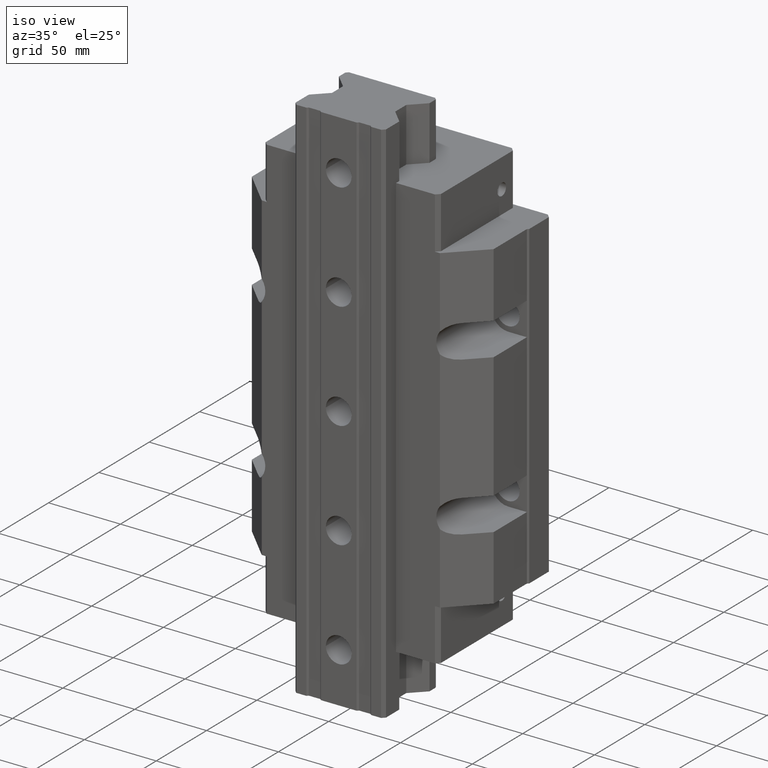
[diagram: clean part render]
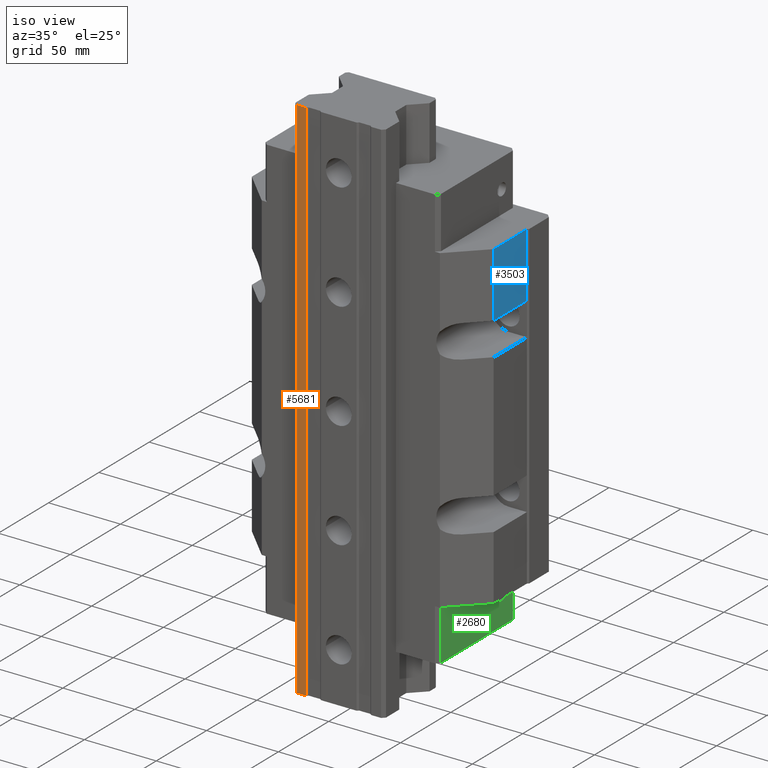
[diagram: same view with three faces highlighted in distinct colors, each labeled with its STEP entity id]
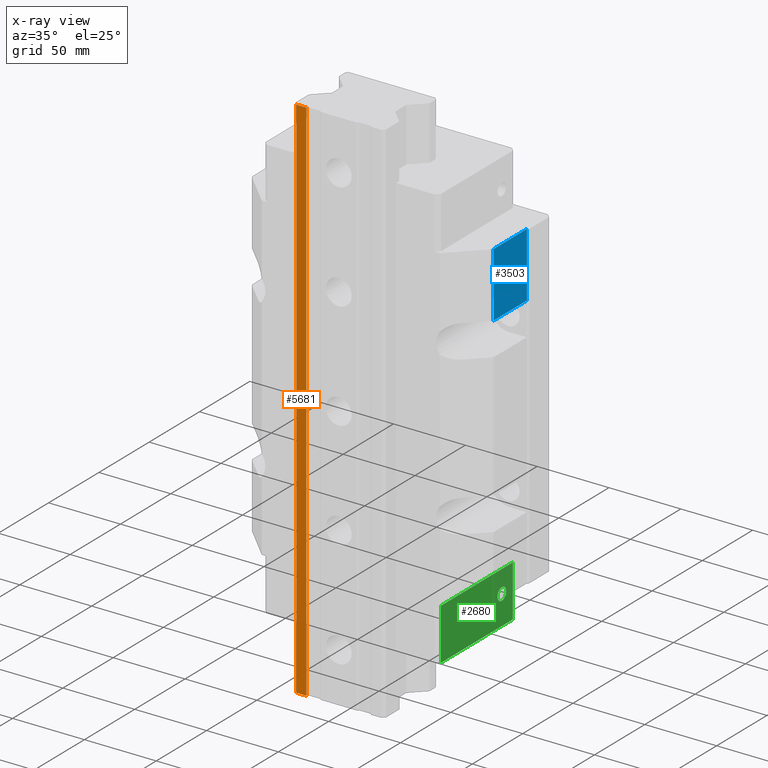
[diagram: x-ray of the same camera — body ghosted, the three highlighted faces saturated]
A machine part, iso view with three faces highlighted in distinct colors.
The next image is the same camera in x-ray (body ghosted, the three faces saturated) — at least one of them is partly hidden behind the body in this view.
Their STEP definitions:

[orange] entity #5681 — the highlighted planar face has unit normal (-0, -1, 0).
#4455=DIRECTION('',(1.E0,-2.050434927233E-7,0.E0));
#4456=VECTOR('',#4455,7.000118888908E0);
#4457=CARTESIAN_POINT('',(-2.950016747676E1,-8.999993794889E1,-1.85E2));
#4458=LINE('',#4457,#4456);
#4609=DIRECTION('',(0.E0,0.E0,1.E0));
#4610=VECTOR('',#4609,3.7E2);
#4611=CARTESIAN_POINT('',(-2.250004858785E1,-8.999993938422E1,-1.85E2));
#4612=LINE('',#4611,#4610);
#4613=DIRECTION('',(1.008202530470E-14,0.E0,1.E0));
#4614=VECTOR('',#4613,3.7E2);
#4615=CARTESIAN_POINT('',(-2.950016747676E1,-8.999993794889E1,-1.85E2));
#4616=LINE('',#4615,#4614);
#4617=DIRECTION('',(1.E0,-2.050434927234E-7,0.E0));
#4618=VECTOR('',#4617,7.000118888904E0);
#4619=CARTESIAN_POINT('',(-2.950016747676E1,-8.999993794889E1,1.85E2));
#4620=LINE('',#4619,#4618);
#5209=CARTESIAN_POINT('',(-2.950016747676E1,-8.999993794889E1,-1.85E2));
#5210=VERTEX_POINT('',#5209);
#5211=CARTESIAN_POINT('',(-2.250004858785E1,-8.999993938422E1,-1.85E2));
#5212=VERTEX_POINT('',#5211);
#5273=CARTESIAN_POINT('',(-2.250004858785E1,-8.999993938422E1,1.85E2));
#5274=VERTEX_POINT('',#5273);
#5275=CARTESIAN_POINT('',(-2.950016747676E1,-8.999993794889E1,1.85E2));
#5276=VERTEX_POINT('',#5275);
#5668=CARTESIAN_POINT('',(-2.950010958327E1,-8.999992554155E1,-1.85E2));
#5669=DIRECTION('',(-2.083333264951E-6,-9.999999999978E-1,0.E0));
#5670=DIRECTION('',(9.999999999978E-1,-2.083333264951E-6,0.E0));
#5671=AXIS2_PLACEMENT_3D('',#5668,#5669,#5670);
#5672=PLANE('',#5671);
#5673=ORIENTED_EDGE('',*,*,#5458,.F.);
#5675=ORIENTED_EDGE('',*,*,#5674,.T.);
#5677=ORIENTED_EDGE('',*,*,#5676,.T.);
#5678=ORIENTED_EDGE('',*,*,#5660,.F.);
#5679=EDGE_LOOP('',(#5673,#5675,#5677,#5678));
#5680=FACE_OUTER_BOUND('',#5679,.F.);
#5681=ADVANCED_FACE('',(#5680),#5672,.T.);
#5458=EDGE_CURVE('',#5210,#5212,#4458,.T.);
#5660=EDGE_CURVE('',#5212,#5274,#4612,.T.);
#5674=EDGE_CURVE('',#5210,#5276,#4616,.T.);
#5676=EDGE_CURVE('',#5276,#5274,#4620,.T.);

[blue] entity #3503 — the highlighted planar face has unit normal (1, -0, 0).
#1024=DIRECTION('',(5.548507052329E-8,2.149577397859E-7,1.E0));
#1025=VECTOR('',#1024,4.5E1);
#1026=CARTESIAN_POINT('',(8.399993432446E1,-2.299999086157E1,6.65E1));
#1027=LINE('',#1026,#1025);
#1127=DIRECTION('',(-1.183637898768E-7,1.E0,0.E0));
#1128=VECTOR('',#1127,3.300000321265E1);
#1129=CARTESIAN_POINT('',(8.399993823047E1,-5.599999407422E1,6.65E1));
#1130=LINE('',#1129,#1128);
#1131=DIRECTION('',(2.317710191669E-8,2.317708817954E-8,1.E0));
#1132=VECTOR('',#1131,4.5E1);
#1133=CARTESIAN_POINT('',(8.399993823047E1,-5.599999407422E1,6.65E1));
#1134=LINE('',#1133,#1132);
#1135=DIRECTION('',(-7.430745390586E-8,1.E0,0.E0));
#1136=VECTOR('',#1135,3.300001184278E1);
#1137=CARTESIAN_POINT('',(8.399993927344E1,-5.599999303125E1,1.115E2));
#1138=LINE('',#1137,#1136);
#1795=CARTESIAN_POINT('',(8.399993432446E1,-2.299999086157E1,6.65E1));
#1796=VERTEX_POINT('',#1795);
#1797=CARTESIAN_POINT('',(8.399993682129E1,-2.299998118847E1,1.115E2));
#1798=VERTEX_POINT('',#1797);
#1899=CARTESIAN_POINT('',(8.399993927344E1,-5.599999303125E1,1.115E2));
#1900=VERTEX_POINT('',#1899);
#1953=CARTESIAN_POINT('',(8.399993823047E1,-5.599999407422E1,6.65E1));
#1954=VERTEX_POINT('',#1953);
#3492=CARTESIAN_POINT('',(8.399994E1,-5.5999992E1,-8.E1));
#3493=DIRECTION('',(1.E0,-1.421084653320E-14,0.E0));
#3494=DIRECTION('',(1.421084653320E-14,1.E0,0.E0));
#3495=AXIS2_PLACEMENT_3D('',#3492,#3493,#3494);
#3496=PLANE('',#3495);
#3497=ORIENTED_EDGE('',*,*,#3484,.F.);
#3498=ORIENTED_EDGE('',*,*,#3473,.T.);
#3499=ORIENTED_EDGE('',*,*,#2402,.T.);
#3500=ORIENTED_EDGE('',*,*,#3324,.F.);
#3501=EDGE_LOOP('',(#3497,#3498,#3499,#3500));
#3502=FACE_OUTER_BOUND('',#3501,.F.);
#3503=ADVANCED_FACE('',(#3502),#3496,.T.);
#2402=EDGE_CURVE('',#1900,#1798,#1138,.T.);
#3324=EDGE_CURVE('',#1796,#1798,#1027,.T.);
#3473=EDGE_CURVE('',#1954,#1900,#1134,.T.);
#3484=EDGE_CURVE('',#1954,#1796,#1130,.T.);

[green] entity #2680 — the highlighted planar face has unit normal (1, -0, 0).
#489=DIRECTION('',(0.E0,1.115157349179E-14,-1.E0));
#490=VECTOR('',#489,3.6E1);
#491=CARTESIAN_POINT('',(6.099994E1,-3.999999999999E0,-1.115E2));
#492=LINE('',#491,#490);
#493=DIRECTION('',(0.E0,-1.E0,0.E0));
#494=VECTOR('',#493,7.1499992E1);
#495=CARTESIAN_POINT('',(6.099994E1,-3.999999999998E0,-1.475E2));
#496=LINE('',#495,#494);
#497=DIRECTION('',(0.E0,1.E0,0.E0));
#498=VECTOR('',#497,7.1499992E1);
#499=CARTESIAN_POINT('',(6.099994E1,-7.5499992E1,-1.115E2));
#500=LINE('',#499,#498);
#501=CARTESIAN_POINT('',(6.099994E1,-1.5E1,-1.273E2));
#502=DIRECTION('',(1.E0,-2.429143143735E-14,0.E0));
#503=DIRECTION('',(0.E0,0.E0,-1.E0));
#504=AXIS2_PLACEMENT_3D('',#501,#502,#503);
#506=CARTESIAN_POINT('',(6.099994E1,-1.5E1,-1.273E2));
#507=DIRECTION('',(1.E0,-2.429143143735E-14,0.E0));
#508=DIRECTION('',(0.E0,0.E0,1.E0));
#509=AXIS2_PLACEMENT_3D('',#506,#507,#508);
#551=DIRECTION('',(1.184237892934E-14,2.131628207280E-14,-1.E0));
#552=VECTOR('',#551,3.6E1);
#553=CARTESIAN_POINT('',(6.099994E1,-7.5499992E1,-1.115E2));
#554=LINE('',#553,#552);
#1609=CARTESIAN_POINT('',(6.099994E1,-3.999999999999E0,-1.115E2));
#1610=VERTEX_POINT('',#1609);
#1611=CARTESIAN_POINT('',(6.099994E1,-7.5499992E1,-1.115E2));
#1612=VERTEX_POINT('',#1611);
#1665=CARTESIAN_POINT('',(6.099994E1,-3.999999999998E0,-1.475E2));
#1666=VERTEX_POINT('',#1665);
#1707=CARTESIAN_POINT('',(6.099994E1,-7.5499992E1,-1.475E2));
#1708=VERTEX_POINT('',#1707);
#2009=CARTESIAN_POINT('',(6.099994E1,-1.5E1,-1.3155E2));
#2010=CARTESIAN_POINT('',(6.099994E1,-1.5E1,-1.2305E2));
#2011=VERTEX_POINT('',#2009);
#2012=VERTEX_POINT('',#2010);
#2662=CARTESIAN_POINT('',(6.099994E1,-3.999999999999E0,-1.115E2));
#2663=DIRECTION('',(1.E0,-1.590025880305E-14,0.E0));
#2664=DIRECTION('',(-1.590025880305E-14,-1.E0,0.E0));
#2665=AXIS2_PLACEMENT_3D('',#2662,#2663,#2664);
#2666=PLANE('',#2665);
#2667=ORIENTED_EDGE('',*,*,#2195,.T.);
#2668=ORIENTED_EDGE('',*,*,#2248,.T.);
#2670=ORIENTED_EDGE('',*,*,#2669,.F.);
#2671=ORIENTED_EDGE('',*,*,#2114,.T.);
#2672=EDGE_LOOP('',(#2667,#2668,#2670,#2671));
#2673=FACE_OUTER_BOUND('',#2672,.F.);
#2675=ORIENTED_EDGE('',*,*,#2674,.T.);
#2677=ORIENTED_EDGE('',*,*,#2676,.T.);
#2678=EDGE_LOOP('',(#2675,#2677));
#2679=FACE_BOUND('',#2678,.F.);
#2680=ADVANCED_FACE('',(#2673,#2679),#2666,.T.);
#505=CIRCLE('',#504,4.25E0);
#510=CIRCLE('',#509,4.25E0);
#2114=EDGE_CURVE('',#1612,#1610,#500,.T.);
#2195=EDGE_CURVE('',#1610,#1666,#492,.T.);
#2248=EDGE_CURVE('',#1666,#1708,#496,.T.);
#2669=EDGE_CURVE('',#1612,#1708,#554,.T.);
#2674=EDGE_CURVE('',#2011,#2012,#505,.T.);
#2676=EDGE_CURVE('',#2012,#2011,#510,.T.);